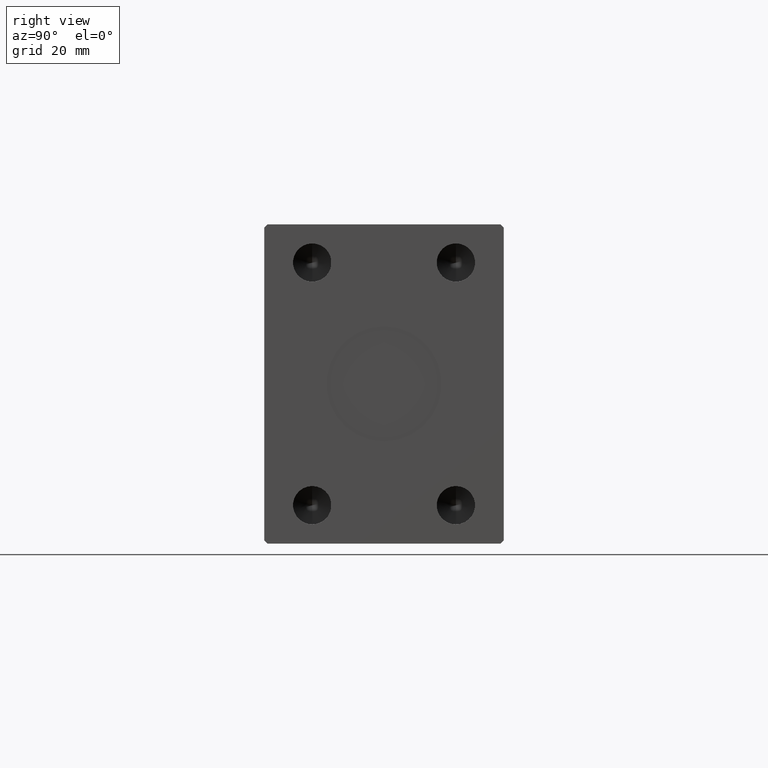
[diagram: clean part render]
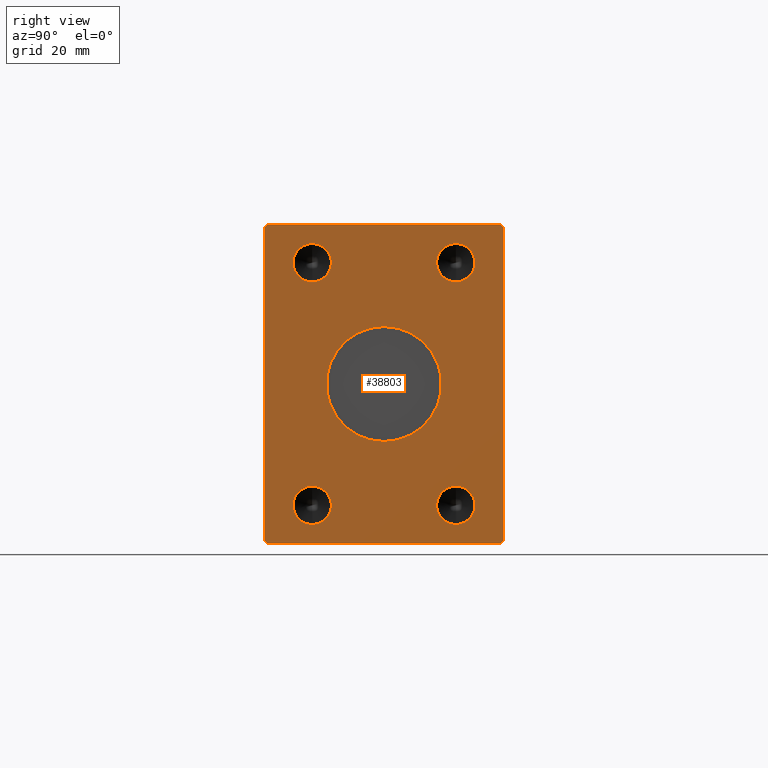
[diagram: same view with one face highlighted and labeled with its STEP entity id]
A machine part, right view. The second image highlights one B-rep face of the part: STEP entity #38803.
In plain terms, the highlighted planar face has unit normal (1, 0, 0).
Its self-contained STEP definition (entity closure, byte-faithful):
#63 = CARTESIAN_POINT ( 'NONE',  ( 182.0000000000000000, -36.50000000000001421, 49.99999999999998579 ) ) ;
#196 = LINE ( 'NONE', #37132, #30672 ) ;
#280 = LINE ( 'NONE', #63, #23511 ) ;
#293 = DIRECTION ( 'NONE',  ( 1.000000000000000000, -0.000000000000000000, -0.000000000000000000 ) ) ;
#297 = EDGE_CURVE ( 'NONE', #42376, #3755, #2302, .T. ) ;
#616 = DIRECTION ( 'NONE',  ( 0.000000000000000000, 0.000000000000000000, -1.000000000000000000 ) ) ;
#807 = EDGE_CURVE ( 'NONE', #9745, #40539, #19356, .T. ) ;
#924 = DIRECTION ( 'NONE',  ( 0.000000000000000000, 0.000000000000000000, -1.000000000000000000 ) ) ;
#1394 = EDGE_LOOP ( 'NONE', ( #37708, #33665 ) ) ;
#1986 = EDGE_CURVE ( 'NONE', #28637, #29969, #38577, .T. ) ;
#2302 = CIRCLE ( 'NONE', #40680, 5.999999999999998224 ) ;
#2846 = LINE ( 'NONE', #17074, #19967 ) ;
#3018 = CARTESIAN_POINT ( 'NONE',  ( 182.0000000000000000, 22.50000000000000000, -38.00000000000000000 ) ) ;
#3755 = VERTEX_POINT ( 'NONE', #37650 ) ;
#3931 = DIRECTION ( 'NONE',  ( 0.000000000000000000, 0.7071067811865474617, 0.7071067811865474617 ) ) ;
#4225 = VERTEX_POINT ( 'NONE', #40453 ) ;
#4343 = AXIS2_PLACEMENT_3D ( 'NONE', #36536, #30303, #26960 ) ;
#4894 = CARTESIAN_POINT ( 'NONE',  ( 182.0000000000000000, -22.50000000000000000, 38.00000000000000000 ) ) ;
#5105 = EDGE_CURVE ( 'NONE', #6263, #12851, #11231, .T. ) ;
#5632 = CARTESIAN_POINT ( 'NONE',  ( 182.0000000000000000, 22.50000000000000000, 44.00000000000000000 ) ) ;
#5863 = AXIS2_PLACEMENT_3D ( 'NONE', #30329, #43897, #40567 ) ;
#6132 = DIRECTION ( 'NONE',  ( 1.000000000000000000, -0.000000000000000000, -0.000000000000000000 ) ) ;
#6263 = VERTEX_POINT ( 'NONE', #5632 ) ;
#6372 = AXIS2_PLACEMENT_3D ( 'NONE', #30775, #293, #37441 ) ;
#6912 = EDGE_CURVE ( 'NONE', #21151, #31779, #13431, .T. ) ;
#7637 = EDGE_CURVE ( 'NONE', #23243, #42001, #15247, .T. ) ;
#9042 = DIRECTION ( 'NONE',  ( 0.000000000000000000, 0.000000000000000000, -1.000000000000000000 ) ) ;
#9171 = VECTOR ( 'NONE', #41959, 1000.000000000000000 ) ;
#9272 = ORIENTED_EDGE ( 'NONE', *, *, #38248, .F. ) ;
#9405 = FACE_BOUND ( 'NONE', #10554, .T. ) ;
#9745 = VERTEX_POINT ( 'NONE', #34504 ) ;
#10170 = ORIENTED_EDGE ( 'NONE', *, *, #14039, .F. ) ;
#10554 = EDGE_LOOP ( 'NONE', ( #43894, #35059 ) ) ;
#10559 = VECTOR ( 'NONE', #32388, 1000.000000000000000 ) ;
#10592 = EDGE_CURVE ( 'NONE', #12851, #6263, #16913, .T. ) ;
#11082 = VERTEX_POINT ( 'NONE', #34626 ) ;
#11099 = ORIENTED_EDGE ( 'NONE', *, *, #21292, .T. ) ;
#11170 = EDGE_CURVE ( 'NONE', #22289, #11082, #15481, .T. ) ;
#11185 = VECTOR ( 'NONE', #38161, 1000.000000000000000 ) ;
#11231 = CIRCLE ( 'NONE', #15482, 5.999999999999998224 ) ;
#11353 = ORIENTED_EDGE ( 'NONE', *, *, #5105, .F. ) ;
#11430 = EDGE_LOOP ( 'NONE', ( #12172, #22676, #39337, #19391, #30319, #22125, #22727, #11099 ) ) ;
#11686 = CARTESIAN_POINT ( 'NONE',  ( 182.0000000000000000, 36.50000000000000711, 50.00000000000000000 ) ) ;
#11804 = CARTESIAN_POINT ( 'NONE',  ( 182.0000000000000000, 22.50000000000000000, 38.00000000000000000 ) ) ;
#12172 = ORIENTED_EDGE ( 'NONE', *, *, #20565, .T. ) ;
#12391 = CARTESIAN_POINT ( 'NONE',  ( 182.0000000000000000, -22.50000000000000000, -44.00000000000000711 ) ) ;
#12492 = DIRECTION ( 'NONE',  ( 0.000000000000000000, -0.7071067811865474617, 0.7071067811865474617 ) ) ;
#12555 = LINE ( 'NONE', #13438, #34891 ) ;
#12851 = VERTEX_POINT ( 'NONE', #27923 ) ;
#13183 = FACE_BOUND ( 'NONE', #1394, .T. ) ;
#13330 = DIRECTION ( 'NONE',  ( 0.000000000000000000, 0.000000000000000000, -1.000000000000000000 ) ) ;
#13431 = CIRCLE ( 'NONE', #31174, 5.999999999999998224 ) ;
#13438 = CARTESIAN_POINT ( 'NONE',  ( 182.0000000000000000, -37.50000000000001421, -49.00000000000000000 ) ) ;
#14039 = EDGE_CURVE ( 'NONE', #3755, #42376, #31929, .T. ) ;
#14059 = DIRECTION ( 'NONE',  ( 1.000000000000000000, 0.000000000000000000, 0.000000000000000000 ) ) ;
#14188 = VERTEX_POINT ( 'NONE', #42108 ) ;
#15247 = LINE ( 'NONE', #21494, #9171 ) ;
#15481 = LINE ( 'NONE', #42409, #10559 ) ;
#15482 = AXIS2_PLACEMENT_3D ( 'NONE', #11804, #32046, #924 ) ;
#15606 = CARTESIAN_POINT ( 'NONE',  ( 182.0000000000000000, 37.50000000000000711, 49.00000000000000000 ) ) ;
#16003 = EDGE_CURVE ( 'NONE', #40539, #9745, #36281, .T. ) ;
#16292 = FACE_OUTER_BOUND ( 'NONE', #11430, .T. ) ;
#16385 = CIRCLE ( 'NONE', #22068, 5.999999999999998224 ) ;
#16913 = CIRCLE ( 'NONE', #41784, 5.999999999999998224 ) ;
#16917 = CARTESIAN_POINT ( 'NONE',  ( 182.0000000000000000, -22.50000000000000000, -32.00000000000000711 ) ) ;
#17074 = CARTESIAN_POINT ( 'NONE',  ( 182.0000000000000000, 36.50000000000000711, -50.00000000000000000 ) ) ;
#17292 = CARTESIAN_POINT ( 'NONE',  ( 182.0000000000000000, -22.50000000000000000, -38.00000000000000711 ) ) ;
#17538 = DIRECTION ( 'NONE',  ( 0.000000000000000000, 0.000000000000000000, -1.000000000000000000 ) ) ;
#17690 = CARTESIAN_POINT ( 'NONE',  ( 182.0000000000000000, 37.50000000000000711, -49.00000000000000000 ) ) ;
#17787 = CARTESIAN_POINT ( 'NONE',  ( 182.0000000000000000, -37.50000000000001421, -49.00000000000000000 ) ) ;
#18113 = ORIENTED_EDGE ( 'NONE', *, *, #6912, .F. ) ;
#18124 = LINE ( 'NONE', #15606, #31066 ) ;
#18457 = DIRECTION ( 'NONE',  ( 1.000000000000000000, -0.000000000000000000, -0.000000000000000000 ) ) ;
#18545 = DIRECTION ( 'NONE',  ( 1.000000000000000000, -0.000000000000000000, -0.000000000000000000 ) ) ;
#19067 = ORIENTED_EDGE ( 'NONE', *, *, #10592, .F. ) ;
#19356 = CIRCLE ( 'NONE', #5863, 18.00000000000000000 ) ;
#19391 = ORIENTED_EDGE ( 'NONE', *, *, #39932, .T. ) ;
#19967 = VECTOR ( 'NONE', #3931, 1000.000000000000114 ) ;
#20565 = EDGE_CURVE ( 'NONE', #14188, #22289, #18124, .T. ) ;
#20653 = AXIS2_PLACEMENT_3D ( 'NONE', #31187, #14059, #23840 ) ;
#21151 = VERTEX_POINT ( 'NONE', #12391 ) ;
#21292 = EDGE_CURVE ( 'NONE', #35582, #14188, #21477, .T. ) ;
#21307 = CARTESIAN_POINT ( 'NONE',  ( 182.0000000000000000, -36.50000000000000711, -50.00000000000000000 ) ) ;
#21477 = LINE ( 'NONE', #17690, #11185 ) ;
#21494 = CARTESIAN_POINT ( 'NONE',  ( 182.0000000000000000, -36.50000000000000711, -50.00000000000000000 ) ) ;
#21518 = CARTESIAN_POINT ( 'NONE',  ( 182.0000000000000000, -22.50000000000000000, 38.00000000000000000 ) ) ;
#21660 = EDGE_LOOP ( 'NONE', ( #19067, #11353 ) ) ;
#22068 = AXIS2_PLACEMENT_3D ( 'NONE', #21518, #31084, #616 ) ;
#22125 = ORIENTED_EDGE ( 'NONE', *, *, #7637, .T. ) ;
#22289 = VERTEX_POINT ( 'NONE', #11686 ) ;
#22676 = ORIENTED_EDGE ( 'NONE', *, *, #11170, .T. ) ;
#22727 = ORIENTED_EDGE ( 'NONE', *, *, #42640, .T. ) ;
#22901 = CARTESIAN_POINT ( 'NONE',  ( 182.0000000000000000, 2.204364238465235428E-15, 18.00000000000000000 ) ) ;
#22956 = PLANE ( 'NONE',  #4343 ) ;
#23243 = VERTEX_POINT ( 'NONE', #21307 ) ;
#23511 = VECTOR ( 'NONE', #43892, 1000.000000000000114 ) ;
#23840 = DIRECTION ( 'NONE',  ( 0.000000000000000000, 0.000000000000000000, -1.000000000000000000 ) ) ;
#24286 = CARTESIAN_POINT ( 'NONE',  ( 182.0000000000000000, -22.50000000000000000, 32.00000000000000000 ) ) ;
#25074 = CARTESIAN_POINT ( 'NONE',  ( 182.0000000000000000, 37.50000000000000711, -49.00000000000000000 ) ) ;
#25445 = CARTESIAN_POINT ( 'NONE',  ( 182.0000000000000000, 22.50000000000000000, 38.00000000000000000 ) ) ;
#25684 = AXIS2_PLACEMENT_3D ( 'NONE', #37138, #34659, #17538 ) ;
#26960 = DIRECTION ( 'NONE',  ( 0.000000000000000000, 0.000000000000000000, -1.000000000000000000 ) ) ;
#27923 = CARTESIAN_POINT ( 'NONE',  ( 182.0000000000000000, 22.50000000000000000, 32.00000000000000000 ) ) ;
#28121 = DIRECTION ( 'NONE',  ( 0.000000000000000000, 0.000000000000000000, -1.000000000000000000 ) ) ;
#28637 = VERTEX_POINT ( 'NONE', #24286 ) ;
#28659 = EDGE_LOOP ( 'NONE', ( #10170, #40316 ) ) ;
#29969 = VERTEX_POINT ( 'NONE', #34681 ) ;
#30063 = AXIS2_PLACEMENT_3D ( 'NONE', #4894, #18457, #38928 ) ;
#30303 = DIRECTION ( 'NONE',  ( 1.000000000000000000, 0.000000000000000000, 0.000000000000000000 ) ) ;
#30319 = ORIENTED_EDGE ( 'NONE', *, *, #39426, .T. ) ;
#30329 = CARTESIAN_POINT ( 'NONE',  ( 182.0000000000000000, 0.000000000000000000, 0.000000000000000000 ) ) ;
#30672 = VECTOR ( 'NONE', #13330, 1000.000000000000000 ) ;
#30775 = CARTESIAN_POINT ( 'NONE',  ( 182.0000000000000000, 22.50000000000000000, -38.00000000000000000 ) ) ;
#30865 = DIRECTION ( 'NONE',  ( 0.000000000000000000, 0.000000000000000000, -1.000000000000000000 ) ) ;
#30902 = VERTEX_POINT ( 'NONE', #17787 ) ;
#31066 = VECTOR ( 'NONE', #12492, 1000.000000000000114 ) ;
#31084 = DIRECTION ( 'NONE',  ( 1.000000000000000000, -0.000000000000000000, -0.000000000000000000 ) ) ;
#31174 = AXIS2_PLACEMENT_3D ( 'NONE', #17292, #37323, #30865 ) ;
#31187 = CARTESIAN_POINT ( 'NONE',  ( 182.0000000000000000, 0.000000000000000000, 0.000000000000000000 ) ) ;
#31779 = VERTEX_POINT ( 'NONE', #16917 ) ;
#31929 = CIRCLE ( 'NONE', #6372, 5.999999999999998224 ) ;
#32046 = DIRECTION ( 'NONE',  ( 1.000000000000000000, -0.000000000000000000, -0.000000000000000000 ) ) ;
#32388 = DIRECTION ( 'NONE',  ( 0.000000000000000000, -1.000000000000000000, -1.901066822988281457E-16 ) ) ;
#33502 = CIRCLE ( 'NONE', #25684, 5.999999999999998224 ) ;
#33665 = ORIENTED_EDGE ( 'NONE', *, *, #16003, .F. ) ;
#34504 = CARTESIAN_POINT ( 'NONE',  ( 182.0000000000000000, 0.000000000000000000, -18.00000000000000000 ) ) ;
#34626 = CARTESIAN_POINT ( 'NONE',  ( 182.0000000000000000, -36.50000000000001421, 49.99999999999998579 ) ) ;
#34659 = DIRECTION ( 'NONE',  ( 1.000000000000000000, -0.000000000000000000, -0.000000000000000000 ) ) ;
#34681 = CARTESIAN_POINT ( 'NONE',  ( 182.0000000000000000, -22.50000000000000000, 44.00000000000000000 ) ) ;
#34891 = VECTOR ( 'NONE', #40580, 1000.000000000000114 ) ;
#35059 = ORIENTED_EDGE ( 'NONE', *, *, #35655, .F. ) ;
#35582 = VERTEX_POINT ( 'NONE', #25074 ) ;
#35655 = EDGE_CURVE ( 'NONE', #29969, #28637, #16385, .T. ) ;
#36281 = CIRCLE ( 'NONE', #20653, 18.00000000000000000 ) ;
#36536 = CARTESIAN_POINT ( 'NONE',  ( 182.0000000000000000, 0.000000000000000000, 0.000000000000000000 ) ) ;
#36600 = CARTESIAN_POINT ( 'NONE',  ( 182.0000000000000000, 36.50000000000000711, -50.00000000000000000 ) ) ;
#36757 = FACE_BOUND ( 'NONE', #21660, .T. ) ;
#37132 = CARTESIAN_POINT ( 'NONE',  ( 182.0000000000000000, -37.50000000000001421, 48.99999999999998579 ) ) ;
#37138 = CARTESIAN_POINT ( 'NONE',  ( 182.0000000000000000, -22.50000000000000000, -38.00000000000000711 ) ) ;
#37323 = DIRECTION ( 'NONE',  ( 1.000000000000000000, -0.000000000000000000, -0.000000000000000000 ) ) ;
#37441 = DIRECTION ( 'NONE',  ( 0.000000000000000000, 0.000000000000000000, -1.000000000000000000 ) ) ;
#37650 = CARTESIAN_POINT ( 'NONE',  ( 182.0000000000000000, 22.50000000000000000, -44.00000000000000000 ) ) ;
#37708 = ORIENTED_EDGE ( 'NONE', *, *, #807, .F. ) ;
#38161 = DIRECTION ( 'NONE',  ( 0.000000000000000000, 0.000000000000000000, 1.000000000000000000 ) ) ;
#38248 = EDGE_CURVE ( 'NONE', #31779, #21151, #33502, .T. ) ;
#38441 = EDGE_LOOP ( 'NONE', ( #18113, #9272 ) ) ;
#38577 = CIRCLE ( 'NONE', #30063, 5.999999999999998224 ) ;
#38803 = ADVANCED_FACE ( 'NONE', ( #13183, #36757, #40322, #40544, #9405, #16292 ), #22956, .T. ) ;
#38928 = DIRECTION ( 'NONE',  ( 0.000000000000000000, 0.000000000000000000, -1.000000000000000000 ) ) ;
#39337 = ORIENTED_EDGE ( 'NONE', *, *, #42793, .T. ) ;
#39426 = EDGE_CURVE ( 'NONE', #30902, #23243, #12555, .T. ) ;
#39841 = CARTESIAN_POINT ( 'NONE',  ( 182.0000000000000000, 22.50000000000000000, -32.00000000000000000 ) ) ;
#39932 = EDGE_CURVE ( 'NONE', #4225, #30902, #196, .T. ) ;
#40316 = ORIENTED_EDGE ( 'NONE', *, *, #297, .F. ) ;
#40322 = FACE_BOUND ( 'NONE', #38441, .T. ) ;
#40453 = CARTESIAN_POINT ( 'NONE',  ( 182.0000000000000000, -37.50000000000001421, 48.99999999999998579 ) ) ;
#40539 = VERTEX_POINT ( 'NONE', #22901 ) ;
#40544 = FACE_BOUND ( 'NONE', #28659, .T. ) ;
#40567 = DIRECTION ( 'NONE',  ( 0.000000000000000000, 0.000000000000000000, -1.000000000000000000 ) ) ;
#40580 = DIRECTION ( 'NONE',  ( 0.000000000000000000, 0.7071067811865500152, -0.7071067811865451302 ) ) ;
#40680 = AXIS2_PLACEMENT_3D ( 'NONE', #3018, #6132, #9042 ) ;
#41784 = AXIS2_PLACEMENT_3D ( 'NONE', #25445, #18545, #28121 ) ;
#41959 = DIRECTION ( 'NONE',  ( 0.000000000000000000, 1.000000000000000000, 0.000000000000000000 ) ) ;
#42001 = VERTEX_POINT ( 'NONE', #36600 ) ;
#42108 = CARTESIAN_POINT ( 'NONE',  ( 182.0000000000000000, 37.50000000000000711, 49.00000000000000000 ) ) ;
#42376 = VERTEX_POINT ( 'NONE', #39841 ) ;
#42409 = CARTESIAN_POINT ( 'NONE',  ( 182.0000000000000000, 36.50000000000000711, 50.00000000000000000 ) ) ;
#42640 = EDGE_CURVE ( 'NONE', #42001, #35582, #2846, .T. ) ;
#42793 = EDGE_CURVE ( 'NONE', #11082, #4225, #280, .T. ) ;
#43892 = DIRECTION ( 'NONE',  ( 0.000000000000000000, -0.7071067811865474617, -0.7071067811865474617 ) ) ;
#43894 = ORIENTED_EDGE ( 'NONE', *, *, #1986, .F. ) ;
#43897 = DIRECTION ( 'NONE',  ( 1.000000000000000000, 0.000000000000000000, 0.000000000000000000 ) ) ;